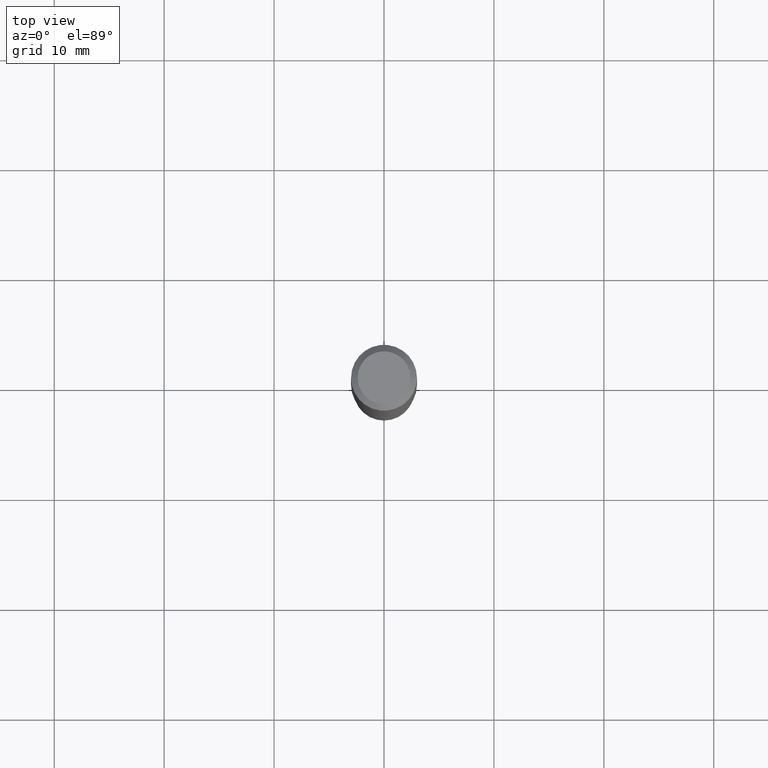
[diagram: clean part render]
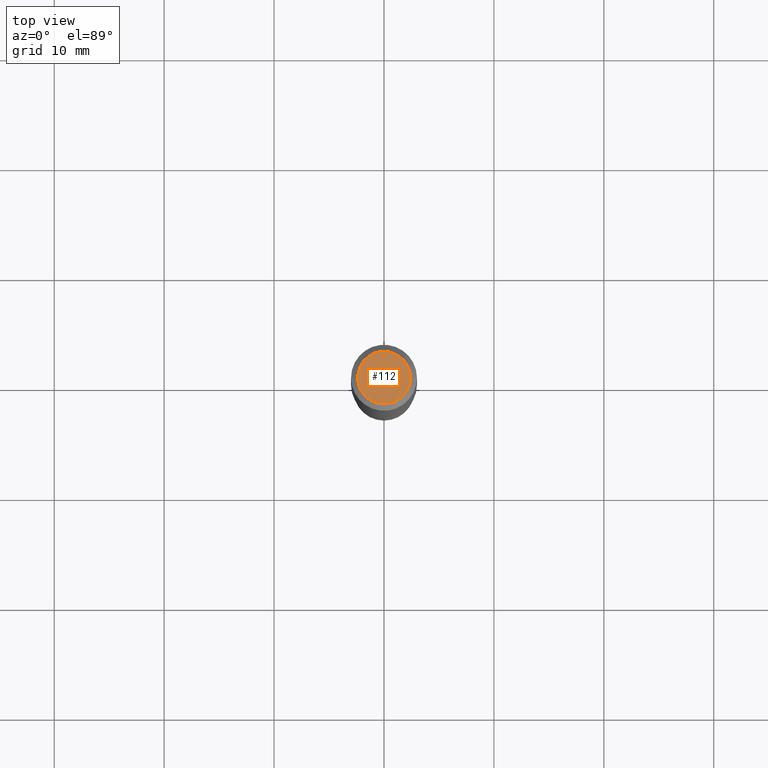
[diagram: same view with one face highlighted and labeled with its STEP entity id]
A machine part, top view. The second image highlights one B-rep face of the part: STEP entity #112.
In plain terms, the highlighted planar face has unit normal (0, -0, -1).
Its self-contained STEP definition (entity closure, byte-faithful):
#20 = CARTESIAN_POINT ( 'NONE',  ( -1.414760311887566167E-46, 2.019902775041730779E-32, 5.785231479172097515E-18 ) ) ;
#24 = CARTESIAN_POINT ( 'NONE',  ( -0.09447999999999998066, 7.009847083995354710E-16, 5.785231479167339697E-18 ) ) ;
#32 = AXIS2_PLACEMENT_3D ( 'NONE', #96, #445, #255 ) ;
#64 = VERTEX_POINT ( 'NONE', #24 ) ;
#75 = EDGE_CURVE ( 'NONE', #64, #84, #124, .T. ) ;
#84 = VERTEX_POINT ( 'NONE', #207 ) ;
#96 = CARTESIAN_POINT ( 'NONE',  ( -1.414760311887566167E-46, 2.019902775041730779E-32, 5.785231479172097515E-18 ) ) ;
#112 = ADVANCED_FACE ( 'NONE', ( #466 ), #209, .F. ) ;
#114 = EDGE_LOOP ( 'NONE', ( #256, #453 ) ) ;
#124 = CIRCLE ( 'NONE', #399, 0.09447999999999998066 ) ;
#200 = DIRECTION ( 'NONE',  ( 1.000000000000000000, -6.982962677686267499E-15, 4.876435884686232796E-29 ) ) ;
#205 = DIRECTION ( 'NONE',  ( -2.445468806185136597E-29, 3.491481338843145583E-15, 1.000000000000000000 ) ) ;
#207 = CARTESIAN_POINT ( 'NONE',  ( 0.09447999999999998066, -7.704367267948737704E-16, 5.785231479177098770E-18 ) ) ;
#209 = PLANE ( 'NONE',  #229 ) ;
#229 = AXIS2_PLACEMENT_3D ( 'NONE', #462, #325, #358 ) ;
#255 = DIRECTION ( 'NONE',  ( 1.000000000000000000, -6.982962677686267499E-15, 4.876435884686232796E-29 ) ) ;
#256 = ORIENTED_EDGE ( 'NONE', *, *, #75, .T. ) ;
#293 = CIRCLE ( 'NONE', #32, 0.09447999999999998066 ) ;
#320 = EDGE_CURVE ( 'NONE', #84, #64, #293, .T. ) ;
#325 = DIRECTION ( 'NONE',  ( 2.438088387897960049E-29, -3.491481338843145188E-15, -1.000000000000000000 ) ) ;
#358 = DIRECTION ( 'NONE',  ( -1.000000000000000000, 6.982962677686265922E-15, -4.876176775795935793E-29 ) ) ;
#399 = AXIS2_PLACEMENT_3D ( 'NONE', #20, #205, #200 ) ;
#445 = DIRECTION ( 'NONE',  ( -2.445468806185136597E-29, 3.491481338843145583E-15, 1.000000000000000000 ) ) ;
#453 = ORIENTED_EDGE ( 'NONE', *, *, #320, .T. ) ;
#462 = CARTESIAN_POINT ( 'NONE',  ( -7.073801559437830836E-47, 1.009951387520865390E-32, 2.892615739586048757E-18 ) ) ;
#466 = FACE_OUTER_BOUND ( 'NONE', #114, .T. ) ;